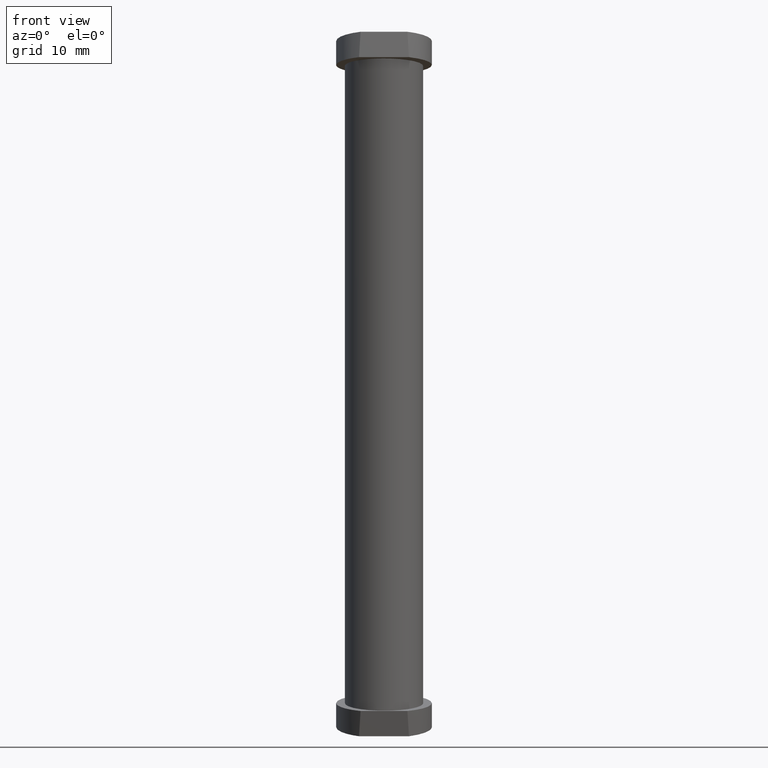
[diagram: clean part render]
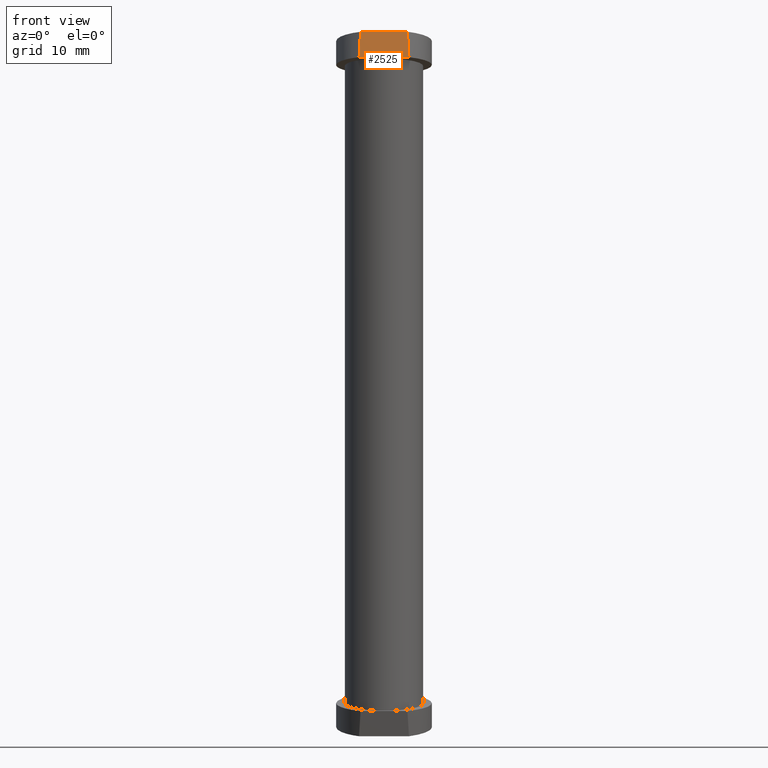
[diagram: same view with one face highlighted and labeled with its STEP entity id]
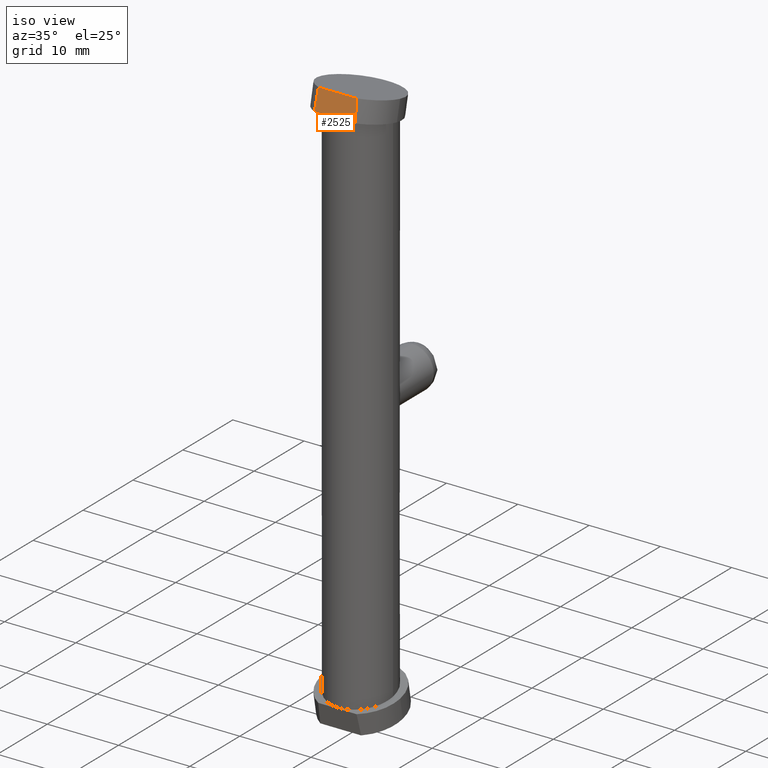
[diagram: same view with one face highlighted and labeled with its STEP entity id]
A machine part, front view. The second image highlights one B-rep face of the part: STEP entity #2525.
A second angle (iso view) of the same face is appended — the face is thin or edge-on in the first view.
In plain terms, the highlighted planar face has unit normal (0, 0.9816, -0.1908).
Its self-contained STEP definition (entity closure, byte-faithful):
#907 = CARTESIAN_POINT ( 'NONE',  ( 2.692033081535048400, -4.673215139754163700, 40.54653230592943200 ) ) ;
#936 = CARTESIAN_POINT ( 'NONE',  ( -2.692033081535050200, -4.673215139754163700, 40.54653230592943200 ) ) ;
#937 = CARTESIAN_POINT ( 'NONE',  ( -2.751697442516648700, -4.856312981436418300, 39.60457556918743200 ) ) ;
#938 = CARTESIAN_POINT ( 'NONE',  ( -2.810726579268728800, -5.045465325059110400, 38.63147112017306700 ) ) ;
#939 = CARTESIAN_POINT ( 'NONE',  ( -2.869099940824894700, -5.240606317322181500, 37.62755774474565100 ) ) ;
#940 =( BOUNDED_CURVE ( )  B_SPLINE_CURVE ( 3, ( #939, #938, #937, #936 ),
 .UNSPECIFIED., .F., .T. ) 
 B_SPLINE_CURVE_WITH_KNOTS ( ( 4, 4 ),
 ( 5.734396194686200800, 5.771714267206768900 ),
 .UNSPECIFIED. ) 
 CURVE ( )  GEOMETRIC_REPRESENTATION_ITEM ( )  RATIONAL_B_SPLINE_CURVE ( ( 1.000000000000000000, 0.9998839501556604500, 0.9998839501556604500, 1.000000000000000000 ) ) 
 REPRESENTATION_ITEM ( '' )  );
#942 = CARTESIAN_POINT ( 'NONE',  ( -2.692033081535050200, -4.673215139754163700, 40.54653230592943200 ) ) ;
#975 = CARTESIAN_POINT ( 'NONE',  ( 2.869099940824906700, -5.240606317322183300, 37.62755774474565100 ) ) ;
#1004 = CARTESIAN_POINT ( 'NONE',  ( -2.869099940824894700, -5.240606317322181500, 37.62755774474565100 ) ) ;
#1046 = DIRECTION ( 'NONE',  ( 1.000000000000000000, -4.701784646652795000E-017, 1.267372706336975100E-017 ) ) ;
#1047 = VECTOR ( 'NONE', #1046, 1000.000000000000000 ) ;
#1048 = CARTESIAN_POINT ( 'NONE',  ( -7.241644568635098500E-016, -4.673215139754165500, 40.54653230592943200 ) ) ;
#1049 = LINE ( 'NONE', #1048, #1047 ) ;
#1087 = CARTESIAN_POINT ( 'NONE',  ( 2.869099940824906700, -5.240606317322183300, 37.62755774474565100 ) ) ;
#1088 = CARTESIAN_POINT ( 'NONE',  ( 2.810726579268732800, -5.045465325059129900, 38.63147112017296100 ) ) ;
#1089 = CARTESIAN_POINT ( 'NONE',  ( 2.751697442516648700, -4.856312981436419200, 39.60457556918743200 ) ) ;
#1090 = CARTESIAN_POINT ( 'NONE',  ( 2.692033081535048400, -4.673215139754163700, 40.54653230592943200 ) ) ;
#1092 =( BOUNDED_CURVE ( )  B_SPLINE_CURVE ( 3, ( #1090, #1089, #1088, #1087 ),
 .UNSPECIFIED., .F., .T. ) 
 B_SPLINE_CURVE_WITH_KNOTS ( ( 4, 4 ),
 ( 0.5114710399728171800, 0.5487891124933875800 ),
 .UNSPECIFIED. ) 
 CURVE ( )  GEOMETRIC_REPRESENTATION_ITEM ( )  RATIONAL_B_SPLINE_CURVE ( ( 1.000000000000000000, 0.9998839501556604500, 0.9998839501556604500, 1.000000000000000000 ) ) 
 REPRESENTATION_ITEM ( '' )  );
#1682 = VECTOR ( 'NONE', #1687, 1000.000000000000000 ) ;
#1687 = DIRECTION ( 'NONE',  ( -1.000000000000000000, 4.701784646652794400E-017, -1.267372706336974900E-017 ) ) ;
#1688 = CARTESIAN_POINT ( 'NONE',  ( 25.00000000000000000, -5.240606317322182400, 37.62755774474565100 ) ) ;
#1689 = LINE ( 'NONE', #1688, #1682 ) ;
#1706 = DIRECTION ( 'NONE',  ( 3.469446951953617300E-018, -0.1908089953765376200, -0.9816271834476654200 ) ) ;
#1707 = DIRECTION ( 'NONE',  ( 4.857225732735059900E-017, 0.9816271834476654200, -0.1908089953765376200 ) ) ;
#1708 = CARTESIAN_POINT ( 'NONE',  ( 8.186656211144589100, -4.668528038246060800, 40.57064535281621400 ) ) ;
#1709 = AXIS2_PLACEMENT_3D ( 'NONE', #1708, #1707, #1706 ) ;
#1711 = PLANE ( 'NONE',  #1709 ) ;
#1726 = FACE_OUTER_BOUND ( 'NONE', #2581, .T. ) ;
#2365 = VERTEX_POINT ( 'NONE', #975 ) ;
#2369 = VERTEX_POINT ( 'NONE', #907 ) ;
#2371 = EDGE_CURVE ( 'NONE', #2369, #2365, #1092, .T. ) ;
#2381 = EDGE_CURVE ( 'NONE', #2401, #2369, #1049, .T. ) ;
#2396 = VERTEX_POINT ( 'NONE', #1004 ) ;
#2400 = EDGE_CURVE ( 'NONE', #2396, #2401, #940, .T. ) ;
#2401 = VERTEX_POINT ( 'NONE', #942 ) ;
#2462 = ORIENTED_EDGE ( 'NONE', *, *, #2470, .F. ) ;
#2463 = ORIENTED_EDGE ( 'NONE', *, *, #2371, .F. ) ;
#2470 = EDGE_CURVE ( 'NONE', #2365, #2396, #1689, .T. ) ;
#2525 = ADVANCED_FACE ( 'NONE', ( #1726 ), #1711, .F. ) ;
#2526 = ORIENTED_EDGE ( 'NONE', *, *, #2381, .F. ) ;
#2527 = ORIENTED_EDGE ( 'NONE', *, *, #2400, .F. ) ;
#2581 = EDGE_LOOP ( 'NONE', ( #2526, #2527, #2462, #2463 ) ) ;